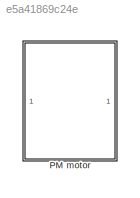
MODEL slx_e5a41869c24e
KIND model
CONFIG AbsTol = auto
CONFIG EnableMultiTasking = off
CONFIG FixedStep = auto
CONFIG MaxStep = auto
CONFIG MinStep = auto
CONFIG RelTol = 1e-3
CONFIG SampleTimeConstraint = Unconstrained
CONFIG SolverName = VariableStepAuto
CONFIG StartTime = 0.0
CONFIG StopTime = 10.0
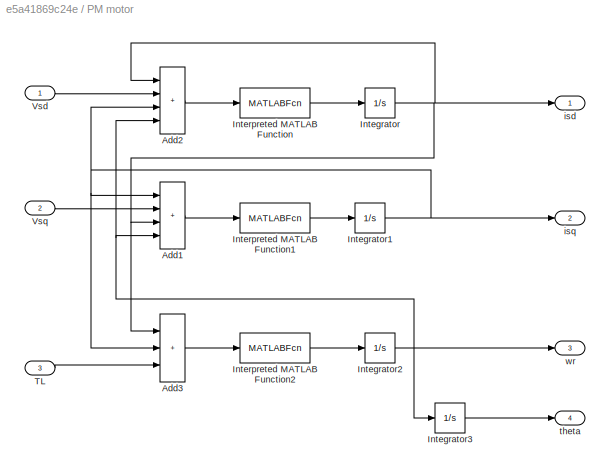
BLOCK [SubSystem] PM motor
BLOCK [Sum] PM motor/Add1
  IconShape = rectangular
  Inputs = ++++
BLOCK [Sum] PM motor/Add2
  IconShape = rectangular
  Inputs = ++++
BLOCK [Sum] PM motor/Add3
  IconShape = rectangular
  Inputs = +++
BLOCK [Integrator] PM motor/Integrator
BLOCK [Integrator] PM motor/Integrator1
BLOCK [Integrator] PM motor/Integrator2
BLOCK [Integrator] PM motor/Integrator3
BLOCK [MATLABFcn] PM motor/Interpreted MATLAB Function
  MATLABFcn = -(Rs/Ld)*u[1] + (Lq/Ld)*u[3]*u[4] + u[2]/Ld
BLOCK [MATLABFcn] PM motor/Interpreted MATLAB Function1
  MATLABFcn = -(Rs/Lq)*u[1] - (Ld/Lq)*u[3]*u[4] - (fe/Lq)*u[4] + u[2]/Lq
BLOCK [MATLABFcn] PM motor/Interpreted MATLAB Function2
  MATLABFcn = J*(fe*u[2] + (Ld-Lq)*u[1]*u[2] - u[3])
BLOCK [Inport] PM motor/TL
  Port = 3
BLOCK [Inport] PM motor/Vsd
BLOCK [Inport] PM motor/Vsq
  Port = 2
BLOCK [Outport] PM motor/isd
BLOCK [Outport] PM motor/isq
  Port = 2
BLOCK [Outport] PM motor/theta
  Port = 4
BLOCK [Outport] PM motor/wr
  Port = 3
LINE PM motor/Add1:1 -> PM motor/Interpreted MATLAB Function1:1
LINE PM motor/Add2:1 -> PM motor/Interpreted MATLAB Function:1
LINE PM motor/Add3:1 -> PM motor/Interpreted MATLAB Function2:1
NET PM motor/Integrator1:1 -> PM motor/Add1:1, PM motor/Add2:3, PM motor/Add3:2, PM motor/isq:1
NET PM motor/Integrator2:1 -> PM motor/Add1:4, PM motor/Add2:4, PM motor/Integrator3:1, PM motor/wr:1
LINE PM motor/Integrator3:1 -> PM motor/theta:1
NET PM motor/Integrator:1 -> PM motor/Add1:3, PM motor/Add2:1, PM motor/Add3:1, PM motor/isd:1
LINE PM motor/Interpreted MATLAB Function1:1 -> PM motor/Integrator1:1
LINE PM motor/Interpreted MATLAB Function2:1 -> PM motor/Integrator2:1
LINE PM motor/Interpreted MATLAB Function:1 -> PM motor/Integrator:1
LINE PM motor/TL:1 -> PM motor/Add3:3
LINE PM motor/Vsd:1 -> PM motor/Add2:2
LINE PM motor/Vsq:1 -> PM motor/Add1:2
note: NET lines group one-source signal fan-out (src -> all destinations, sorted); 1:1 wires keep LINE
